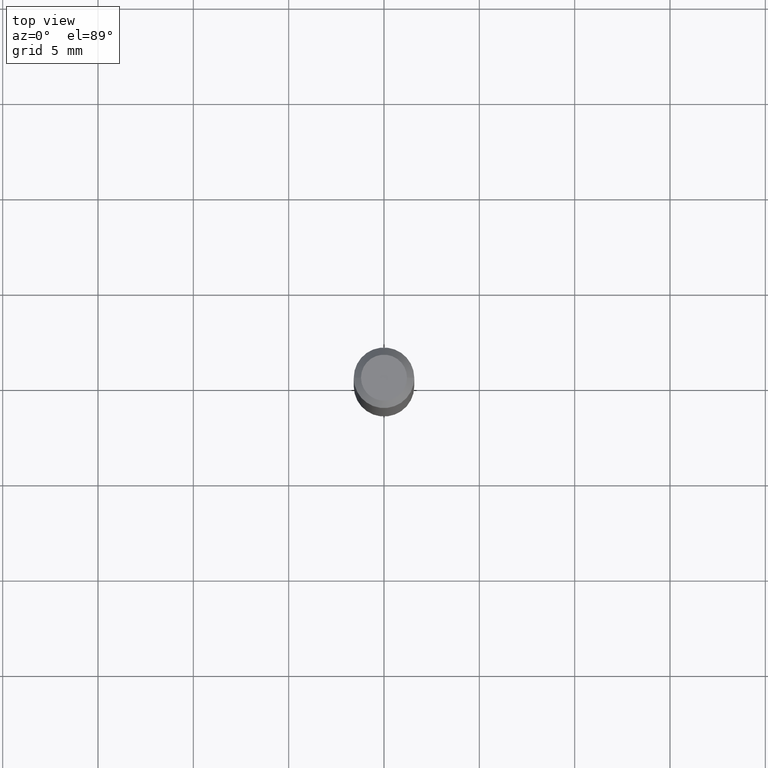
[diagram: clean part render]
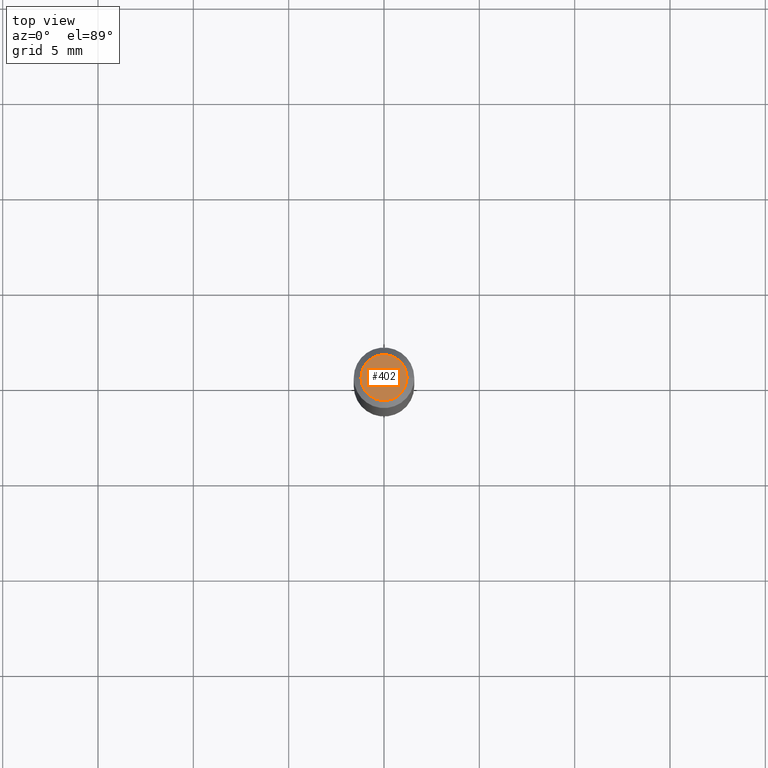
[diagram: same view with one face highlighted and labeled with its STEP entity id]
A machine part, top view. The second image highlights one B-rep face of the part: STEP entity #402.
In plain terms, the highlighted planar face has unit normal (0, -0, -1).
Its self-contained STEP definition (entity closure, byte-faithful):
#21 = CIRCLE ( 'NONE', #380, 0.04749999999999999362 ) ;
#30 = DIRECTION ( 'NONE',  ( 2.438088387897960049E-29, -3.491481338843145188E-15, -1.000000000000000000 ) ) ;
#36 = CARTESIAN_POINT ( 'NONE',  ( -0.04749999999999999362, 3.578768372314208041E-16, -8.274703207154778150E-17 ) ) ;
#47 = CARTESIAN_POINT ( 'NONE',  ( 2.023552857353652888E-45, -2.889097183224559242E-31, -8.274703207154537794E-17 ) ) ;
#59 = FACE_OUTER_BOUND ( 'NONE', #435, .T. ) ;
#68 = CARTESIAN_POINT ( 'NONE',  ( 3.316907271900976096E-16, 0.04749999999999999362, 3.181781981480094004E-17 ) ) ;
#70 = AXIS2_PLACEMENT_3D ( 'NONE', #68, #30, #419 ) ;
#135 = ORIENTED_EDGE ( 'NONE', *, *, #185, .T. ) ;
#163 = ORIENTED_EDGE ( 'NONE', *, *, #438, .T. ) ;
#168 = DIRECTION ( 'NONE',  ( 1.000000000000000000, -6.982962677686267499E-15, 4.884662768193073002E-29 ) ) ;
#179 = CARTESIAN_POINT ( 'NONE',  ( 0.04749999999999999362, -4.035134999187581581E-16, -8.274703207154280181E-17 ) ) ;
#185 = EDGE_CURVE ( 'NONE', #253, #515, #528, .T. ) ;
#219 = DIRECTION ( 'NONE',  ( 1.000000000000000000, -6.982962677686267499E-15, 4.884662768193073002E-29 ) ) ;
#228 = DIRECTION ( 'NONE',  ( -2.445468806185136597E-29, 3.491481338843145583E-15, 1.000000000000000000 ) ) ;
#253 = VERTEX_POINT ( 'NONE', #36 ) ;
#310 = CARTESIAN_POINT ( 'NONE',  ( 2.023552857353652888E-45, -2.889097183224559242E-31, -8.274703207154537794E-17 ) ) ;
#354 = AXIS2_PLACEMENT_3D ( 'NONE', #310, #565, #168 ) ;
#380 = AXIS2_PLACEMENT_3D ( 'NONE', #47, #228, #219 ) ;
#402 = ADVANCED_FACE ( 'NONE', ( #59 ), #507, .F. ) ;
#419 = DIRECTION ( 'NONE',  ( -1.000000000000000000, 6.982962677686265922E-15, -4.876176775795935793E-29 ) ) ;
#435 = EDGE_LOOP ( 'NONE', ( #135, #163 ) ) ;
#438 = EDGE_CURVE ( 'NONE', #515, #253, #21, .T. ) ;
#507 = PLANE ( 'NONE',  #70 ) ;
#515 = VERTEX_POINT ( 'NONE', #179 ) ;
#528 = CIRCLE ( 'NONE', #354, 0.04749999999999999362 ) ;
#565 = DIRECTION ( 'NONE',  ( -2.445468806185136597E-29, 3.491481338843145583E-15, 1.000000000000000000 ) ) ;